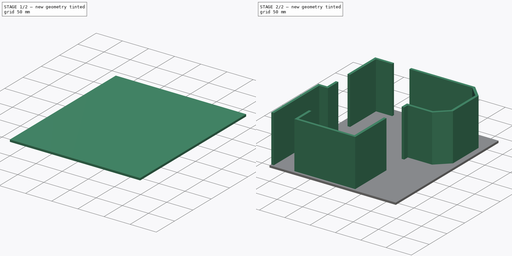
[diagram: build sequence overview — one tinted view per stage of 2, left to right]
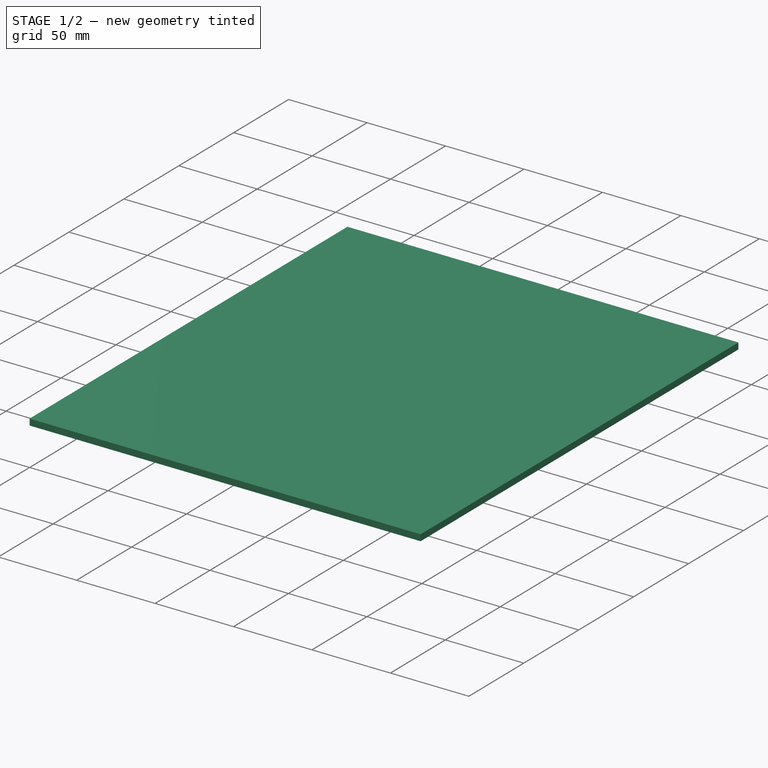
[diagram: stage 1 of 2 — iso view after this stage's code; geometry added in this stage tinted green]
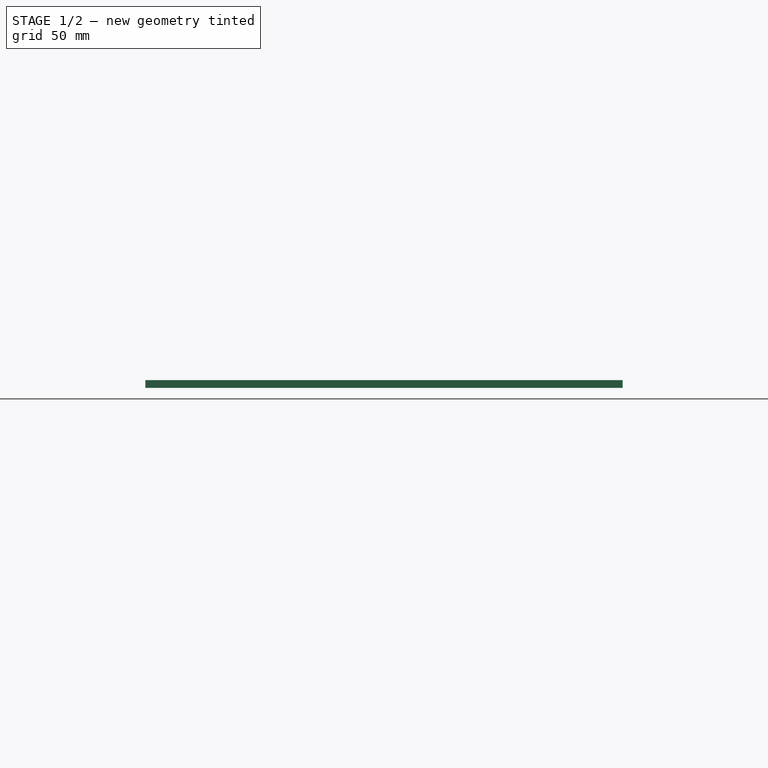
[diagram: stage 1 of 2 — front view after this stage's code; geometry added in this stage tinted green]
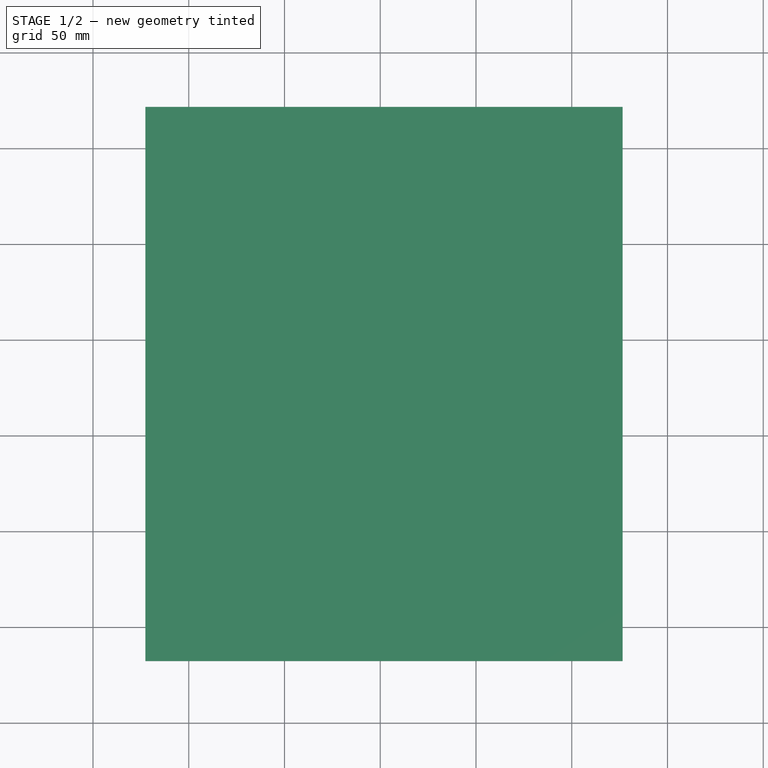
[diagram: stage 1 of 2 — top view after this stage's code; geometry added in this stage tinted green]
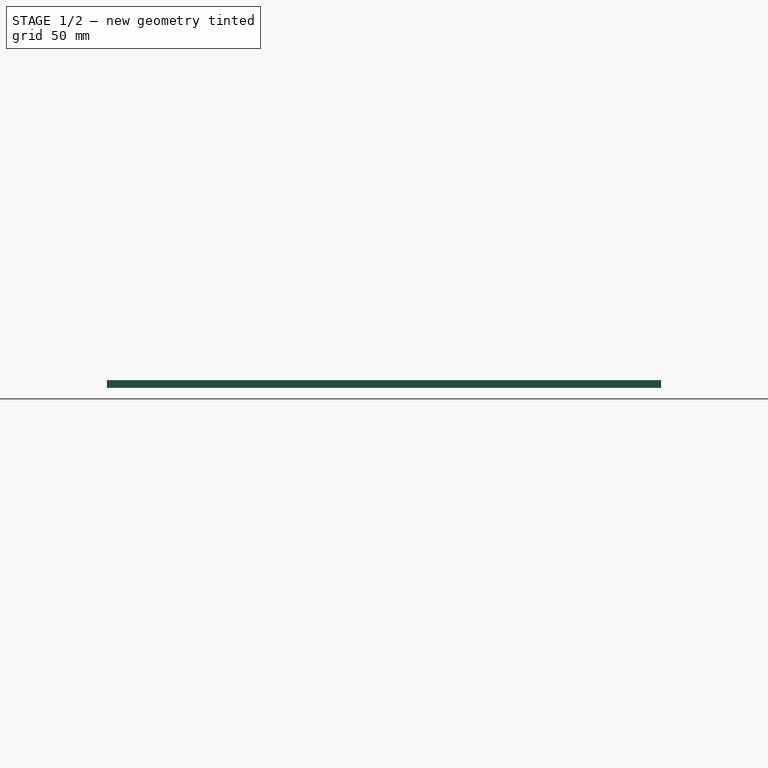
[diagram: stage 1 of 2 — right view after this stage's code; geometry added in this stage tinted green]
FCSTD DOCUMENT  (FreeCAD 0.19R)
Label: Kitchen
License: All rights reserved
LicenseURL: http://en.wikipedia.org/wiki/All_rights_reserved
objects: Sketcher::SketchObject×2, PartDesign::Pad×2, PartDesign::Body×1
note: 7 computed .brp shape members not serialized (recipe doc carries the construction recipe); baked Part::Feature solids carry a one-line shape summary decoded from their .brp

FEATURE [Sketcher::SketchObject] Sketch001
  FullyConstrained = false
  MapMode = 5
  Support = -> [XY_Plane]
  sketch-geometry (4):
    g0: LineSegment StartX=-22.6645 StartY=21.6991 StartZ=0 EndX=226.571 EndY=21.6991 EndZ=0
    g1: LineSegment StartX=226.571 StartY=21.6991 StartZ=0 EndX=226.571 EndY=-267.668 EndZ=0
    g2: LineSegment StartX=226.571 StartY=-267.668 StartZ=0 EndX=-22.6645 EndY=-267.668 EndZ=0
    g3: LineSegment StartX=-22.6645 StartY=-267.668 StartZ=0 EndX=-22.6645 EndY=21.6991 EndZ=0
  constraints (8):
    c: Coincident(g0,g1)
    c: Coincident(g1,g2)
    c: Coincident(g2,g3)
    c: Coincident(g3,g0)
    c: Horizontal(g0)
    c: Horizontal(g2)
    c: Vertical(g1)
    c: Vertical(g3)
FEATURE [PartDesign::Pad] Pad
  Direction = (1,1,1)
  Length = 4
  Length2 = 100
  Profile = -> Sketch001
  Type = 0
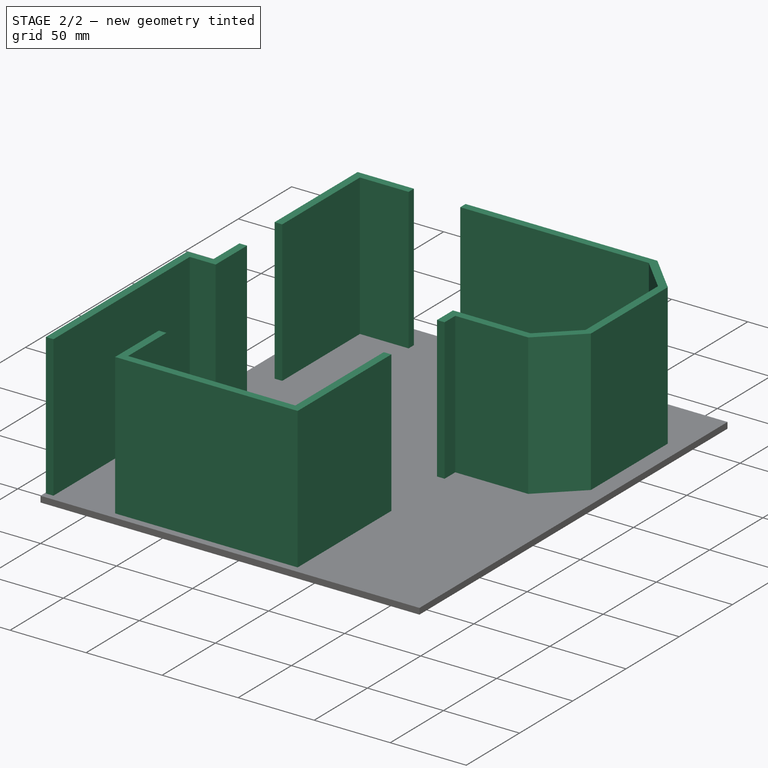
[diagram: stage 2 of 2 — iso view after this stage's code; geometry added in this stage tinted green]
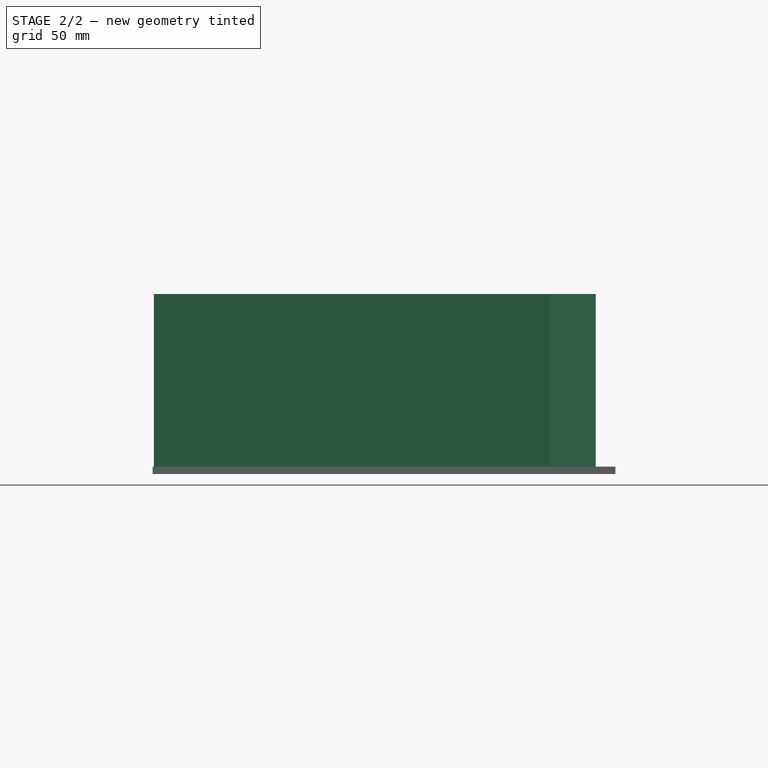
[diagram: stage 2 of 2 — front view after this stage's code; geometry added in this stage tinted green]
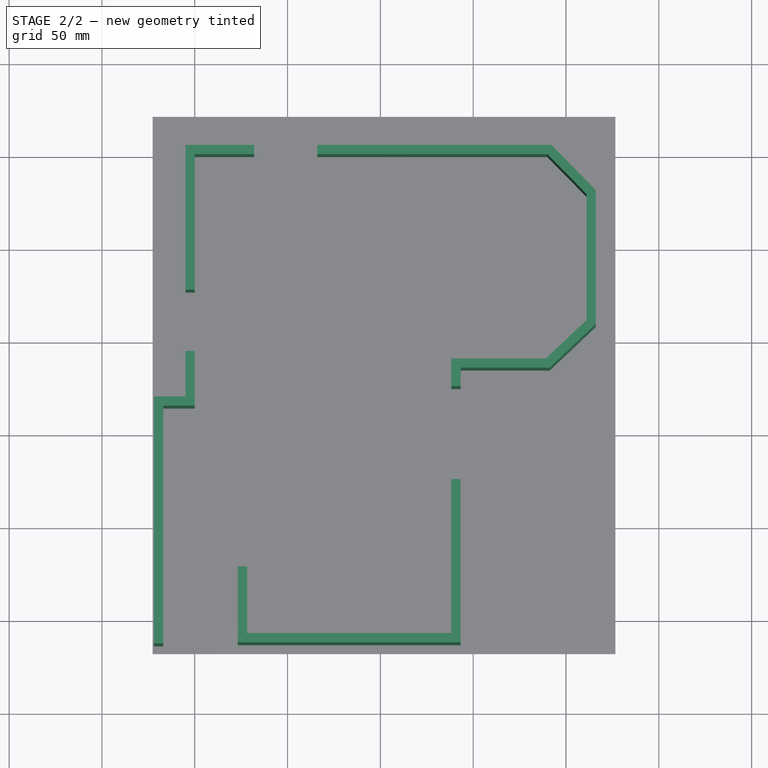
[diagram: stage 2 of 2 — top view after this stage's code; geometry added in this stage tinted green]
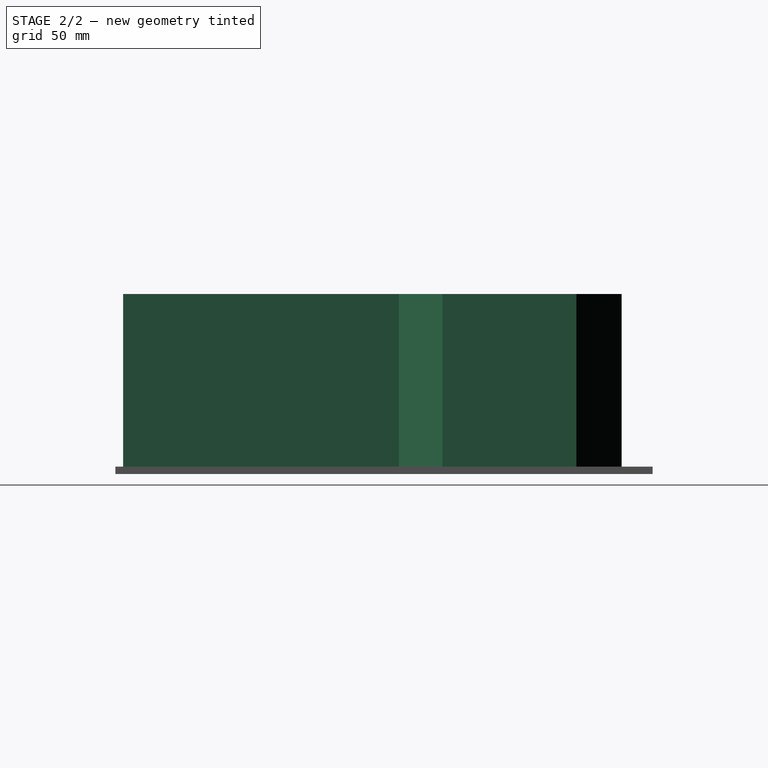
[diagram: stage 2 of 2 — right view after this stage's code; geometry added in this stage tinted green]
FEATURE [Sketcher::SketchObject] Sketch
  FullyConstrained = true
  MapMode = 5
  Placement = pos=(0,0,4) rot=(0,0,1;0rad)
  Support = -> [Pad]
  sketch-geometry (36):
    g0: LineSegment StartX=-17 StartY=-135.5 StartZ=0 EndX=0 EndY=-135.5 EndZ=0
    g1: LineSegment StartX=0 StartY=0 StartZ=0 EndX=32 EndY=0 EndZ=0
    g2: LineSegment StartX=32 StartY=0 StartZ=0 EndX=32 EndY=5 EndZ=0
    g3: LineSegment StartX=32 StartY=5 StartZ=0 EndX=-5 EndY=5 EndZ=0
    g4: LineSegment StartX=-5 StartY=-130.5 StartZ=0 EndX=-22 EndY=-130.5 EndZ=0
    g5: LineSegment StartX=66 StartY=5 StartZ=0 EndX=66 EndY=0 EndZ=0
    g6: LineSegment StartX=66 StartY=0 StartZ=0 EndX=190 EndY=0 EndZ=0
    g7: LineSegment StartX=190 StartY=0 StartZ=0 EndX=211.024 EndY=-21.4012 EndZ=0
    g8: LineSegment StartX=211.024 StartY=-21.4012 StartZ=0 EndX=211.024 EndY=-89.4012 EndZ=0
    g9: LineSegment StartX=211.024 StartY=-89.4012 StartZ=0 EndX=189.213 EndY=-110 EndZ=0
    g10: LineSegment StartX=189.213 StartY=-110 StartZ=0 EndX=138.213 EndY=-110 EndZ=0
    g11: LineSegment StartX=138.2 StartY=-258 StartZ=0 EndX=28.2 EndY=-258 EndZ=0
    g12: LineSegment StartX=28.2 StartY=-258 StartZ=0 EndX=28.2 EndY=-222 EndZ=0
    g13: LineSegment StartX=28.2 StartY=-222 StartZ=0 EndX=23.2 EndY=-222 EndZ=0
    g14: LineSegment StartX=23.2 StartY=-222 StartZ=0 EndX=23.2 EndY=-263 EndZ=0
    g15: LineSegment StartX=23.2 StartY=-263 StartZ=0 EndX=143.2 EndY=-263 EndZ=0
    g16: LineSegment StartX=143.213 StartY=-115 StartZ=0 EndX=191.201 EndY=-115 EndZ=0
    g17: LineSegment StartX=191.201 StartY=-115 StartZ=0 EndX=216.024 EndY=-91.5564 EndZ=0
    g18: LineSegment StartX=216.024 StartY=-91.5564 StartZ=0 EndX=216.024 EndY=-19.3561 EndZ=0
    g19: LineSegment StartX=216.024 StartY=-19.3561 StartZ=0 EndX=192.097 EndY=5 EndZ=0
    g20: LineSegment StartX=192.097 StartY=5 StartZ=0 EndX=66 EndY=5 EndZ=0
    g21: LineSegment StartX=-5 StartY=-130.5 StartZ=0 EndX=-5 EndY=-106 EndZ=0
    g22: LineSegment StartX=-5 StartY=-106 StartZ=0 EndX=0 EndY=-106 EndZ=0
    g23: LineSegment StartX=0 StartY=-106 StartZ=0 EndX=0 EndY=-135.5 EndZ=0
    g24: LineSegment StartX=-5 StartY=5 StartZ=0 EndX=-5 EndY=-73 EndZ=0
    g25: LineSegment StartX=-5 StartY=-73 StartZ=0 EndX=0 EndY=-73 EndZ=0
    g26: LineSegment StartX=0 StartY=-73 StartZ=0 EndX=0 EndY=0 EndZ=0
    g27: LineSegment StartX=138.213 StartY=-110 StartZ=0 EndX=138.213 EndY=-125 EndZ=0
    g28: LineSegment StartX=138.2 StartY=-175 StartZ=0 EndX=138.2 EndY=-258 EndZ=0
    g29: LineSegment StartX=143.213 StartY=-115 StartZ=0 EndX=143.213 EndY=-125 EndZ=0
    g30: LineSegment StartX=143.213 StartY=-125 StartZ=0 EndX=138.213 EndY=-125 EndZ=0
    g31: LineSegment StartX=138.2 StartY=-175 StartZ=0 EndX=143.2 EndY=-175 EndZ=0
    g32: LineSegment StartX=143.2 StartY=-175 StartZ=0 EndX=143.2 EndY=-263 EndZ=0
    g33: LineSegment StartX=-17 StartY=-135.5 StartZ=0 EndX=-17 EndY=-263.55 EndZ=0
    g34: LineSegment StartX=-17 StartY=-263.55 StartZ=0 EndX=-22 EndY=-263.55 EndZ=0
    g35: LineSegment StartX=-22 StartY=-263.55 StartZ=0 EndX=-22 EndY=-130.5 EndZ=0
  constraints (107):
    c: PointOnObject(g0,g-2)
    c: Horizontal(g0)
    c: PointOnObject(g1,g-1)
    c: Coincident(g1,g2)
    c: Coincident(g2,g3)
    c: Horizontal(g3)
    c: Coincident(g5,g6)
    c: PointOnObject(g6,g-1)
    c: Horizontal(g6)
    c: Coincident(g6,g7)
    c: Coincident(g7,g8)
    c: Coincident(g8,g9)
    c: Coincident(g9,g10)
    c: Horizontal(g11)
    c: Coincident(g11,g12)
    c: Vertical(g12)
    c: Coincident(g12,g13)
    c: Coincident(g13,g14)
    c: Vertical(g14)
    c: Coincident(g14,g15)
    c: Coincident(g16,g17)
    c: Coincident(g17,g18)
    c: Coincident(g18,g19)
    c: Coincident(g19,g20)
    c: Coincident(g20,g5)
    c: Horizontal(g20)
    c: Equal(g2,g5)
    c: Equal(g5,g13)
    c: Horizontal(g4)
    c: Horizontal(g13)
    c: Coincident(g4,g21)
    c: Vertical(g21)
    c: Coincident(g21,g22)
    c: PointOnObject(g22,g-2)
    c: Coincident(g22,g23)
    c: Coincident(g23,g0)
    c: Coincident(g3,g24)
    c: Vertical(g24)
    c: Coincident(g24,g25)
    c: PointOnObject(g25,g-2)
    c: Coincident(g25,g26)
    c: Coincident(g26,g1)
    c: Horizontal(g22)
    c: Horizontal(g25)
    c: Equal(g25,g22)
    c: Equal(g22,g13)
    c: Distance(g23) = 29.5
    c: Distance(g22,g25) = 33
    c: Distance(g26) = 73
    c: Coincident(g1,g-1)
    c: Distance(g1) = 32
    c: Vertical(g2)
    c: Distance(g1,g5) = 34
    c: Vertical(g5)
    c: Distance(g6) = 124
    c: Distance(g7) = 30
    c: Distance(g8) = 68
    c: Distance(g9) = 30
    c: Vertical(g8)
    c: Parallel(g19,g7)
    c: Parallel(g9,g17)
    c: Parallel(g18,g8)
    c: Horizontal(g10)
    c: Distance(g10) = 51
    c: Parallel(g16,g10)
    c: Distance(g16,g10) = 5
    c: Distance(g17,g8) = 5
    c: Distance(g7,g19) = 5
    c: Distance(g16,g9) = 5
    c: Parallel(g15,g11)
    c: Coincident(g27,g10)
    c: Vertical(g27)
    c: Coincident(g28,g11)
    c: Vertical(g28)
    c: Distance(g27) = 15
    c: Distance(g28,g27) = 50
    c: Distance(g28) = 83
    c: Coincident(g16,g29)
    c: Vertical(g29)
    c: Coincident(g29,g30)
    c: Coincident(g30,g27)
    c: Coincident(g28,g31)
    c: Horizontal(g31)
    c: Coincident(g31,g32)
    c: Coincident(g15,g32)
    c: Parallel(g32,g28)
    c: Distance(g31) = 5
    c: Perpendicular(g27,g30)
    c: Distance(g30) = 5
    c: Distance(g15,g11) = 5
    c: Distance(g11) = 110
    c: Distance(g12) = 36
    c: DistanceY(g10) = -110
    c: Angle(g7,g8) = 2.3651
    c: DistanceX(g28) = 138.2
    c: Coincident(g0,g33)
    c: Vertical(g33)
    c: Coincident(g33,g34)
    c: Coincident(g34,g35)
    c: Vertical(g35)
    c: Coincident(g4,g35)
    c: Distance(g0,g35) = 5
    c: Distance(g0) = 17
    c: Horizontal(g34)
    c: Distance(g33) = 128.05
    c: Distance(g4,g0) = 5
    c: Distance(g1,g24) = 5
FEATURE [PartDesign::Pad] Pad001
  BaseFeature = -> Pad
  Direction = (1,1,1)
  Length = 93
  Length2 = 100
  Profile = -> Sketch
  Type = 0
FEATURE [PartDesign::Body] Body
  Group = -> [Sketch,Sketch001,Pad,Pad001]
  Origin = -> Origin
  Tip = -> Pad001
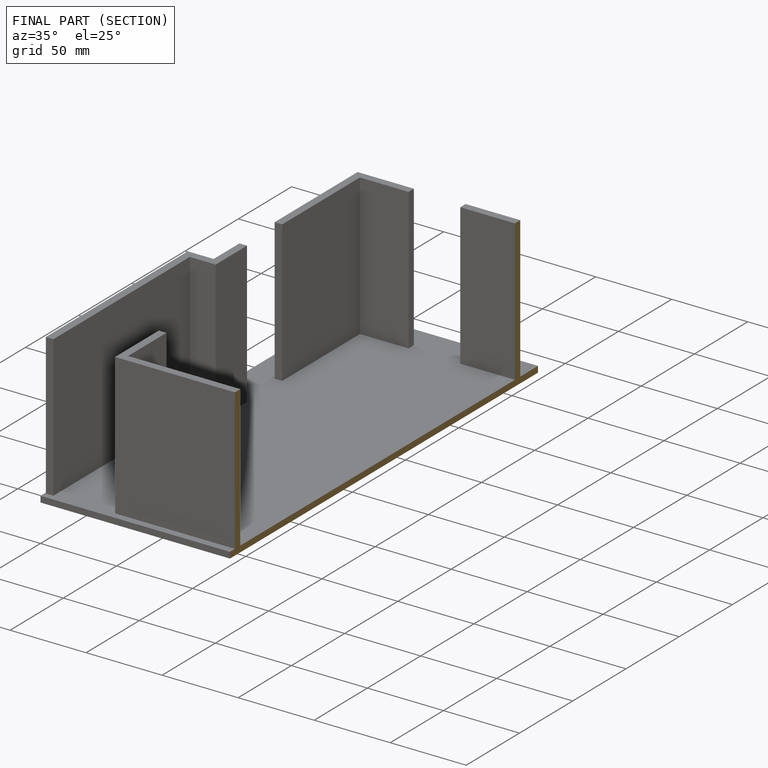
[diagram: finished part — half-section view (interior)]
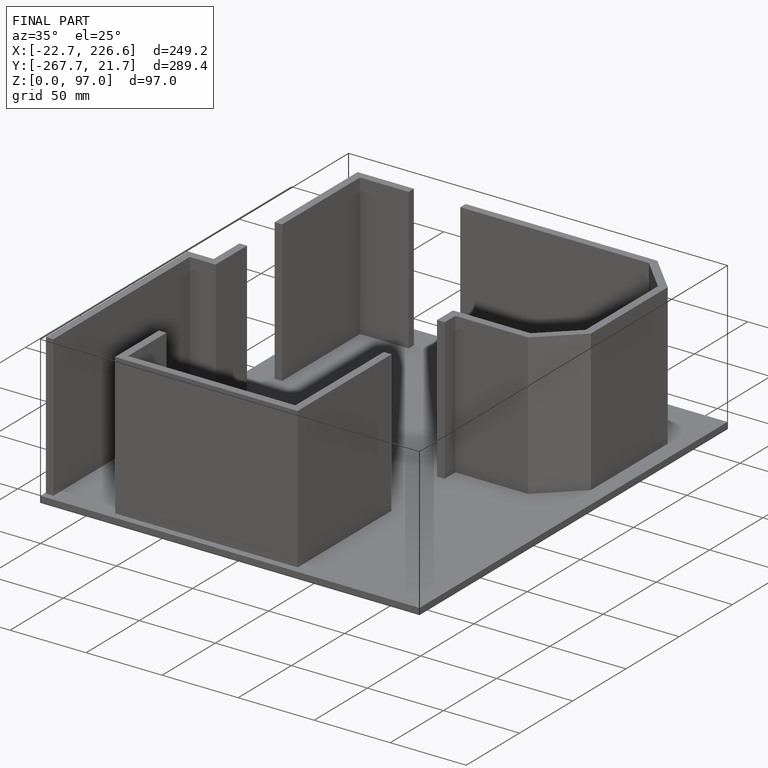
[diagram: finished part — iso view with bounding-box wireframe]
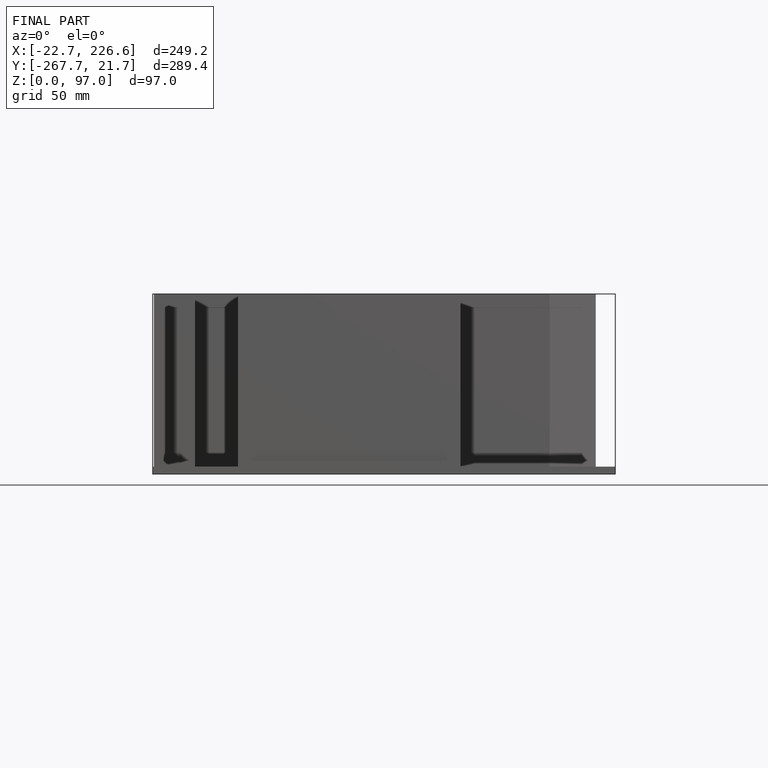
[diagram: finished part — front view with bounding-box wireframe]
